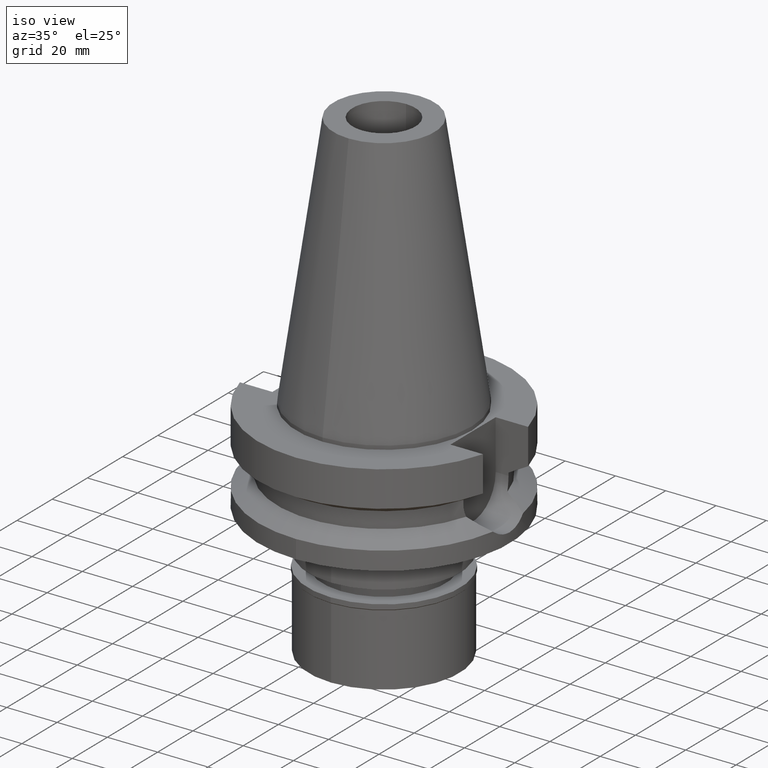
[diagram: clean part render]
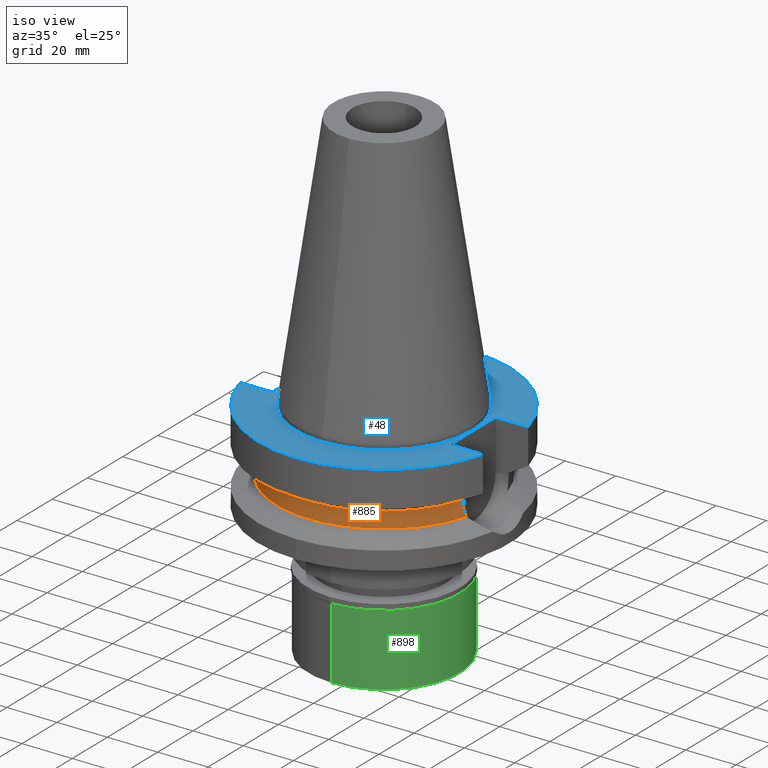
[diagram: same view with three faces highlighted in distinct colors, each labeled with its STEP entity id]
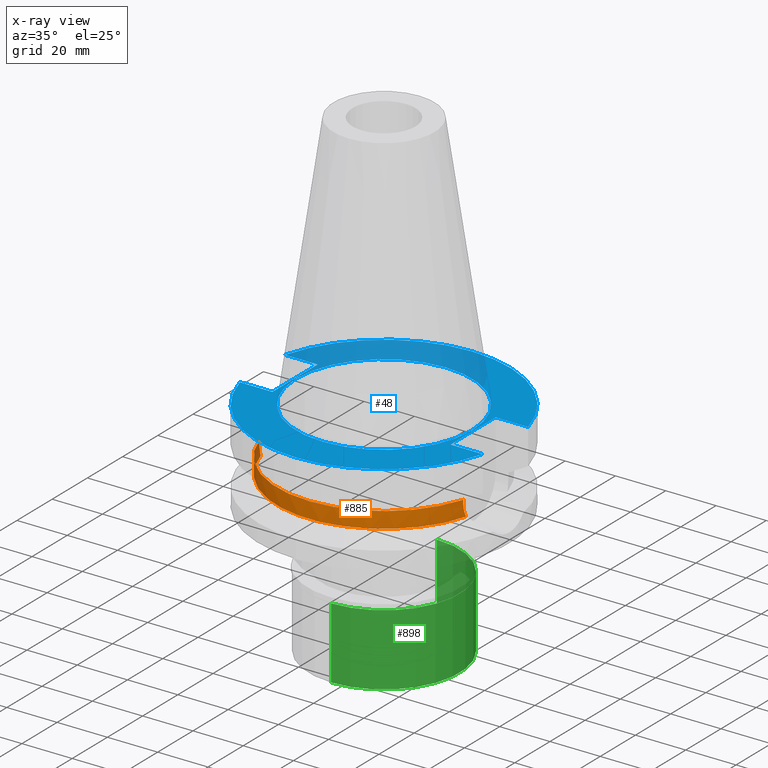
[diagram: x-ray of the same camera — body ghosted, the three highlighted faces saturated]
A machine part, iso view with three faces highlighted in distinct colors.
The next image is the same camera in x-ray (body ghosted, the three faces saturated) — at least one of them is partly hidden behind the body in this view.
Their STEP definitions:

[orange] entity #885 — the highlighted cylindrical surface (partial cylindrical patch) has radius 42.5 mm, axis along (0, 0, -1).
#7 = VERTEX_POINT ( 'NONE', #76 ) ;
#66 = EDGE_CURVE ( 'NONE', #7, #2121, #129, .T. ) ;
#76 = CARTESIAN_POINT ( 'NONE',  ( 40.51083188481999997, -12.84999999999999964, -19.99281925464999787 ) ) ;
#79 = CARTESIAN_POINT ( 'NONE',  ( -40.60613670648186968, -12.54578755583301231, -23.92964714799551729 ) ) ;
#88 = CARTESIAN_POINT ( 'NONE',  ( 0.0000000000000000000, 1.006319759053999930E-14, -19.99281925464999787 ) ) ;
#94 = CARTESIAN_POINT ( 'NONE',  ( -40.68244601107633684, -12.29666625011165415, -24.88710380518764254 ) ) ;
#129 = CIRCLE ( 'NONE', #910, 42.50000000000002132 ) ;
#253 = EDGE_CURVE ( 'NONE', #996, #2121, #2342, .T. ) ;
#263 = ORIENTED_EDGE ( 'NONE', *, *, #2240, .F. ) ;
#283 = DIRECTION ( 'NONE',  ( -9.706542783558457742E-07, -3.060081394274144957E-06, -0.9999999999948467888 ) ) ;
#289 = CARTESIAN_POINT ( 'NONE',  ( -40.74530522851353709, -12.08734613714425876, -25.53455770065779618 ) ) ;
#338 = CARTESIAN_POINT ( 'NONE',  ( 40.85052569294000335, -11.72538061688000077, -26.40718074535000426 ) ) ;
#377 = CARTESIAN_POINT ( 'NONE',  ( 40.54944727710435615, -12.72806419699665526, -22.93049076237651107 ) ) ;
#391 = CARTESIAN_POINT ( 'NONE',  ( 40.57496101843507574, -12.64633755876298693, -23.43369807928904081 ) ) ;
#470 = CYLINDRICAL_SURFACE ( 'NONE', #1991, 42.50000000000000000 ) ;
#522 = CARTESIAN_POINT ( 'NONE',  ( 40.51083300802000764, -12.84999645901999976, -19.99284642926000188 ) ) ;
#528 = CARTESIAN_POINT ( 'NONE',  ( -40.51083188482000708, -12.84999999999998543, -22.03308001794205140 ) ) ;
#596 = DIRECTION ( 'NONE',  ( 0.9531960443486575674, -0.3023529411764863672, 0.0000000000000000000 ) ) ;
#605 = CARTESIAN_POINT ( 'NONE',  ( 40.51083188481999997, -12.84999999999999609, -21.59154171183184800 ) ) ;
#608 = VERTEX_POINT ( 'NONE', #2826 ) ;
#633 = ORIENTED_EDGE ( 'NONE', *, *, #253, .F. ) ;
#659 = CARTESIAN_POINT ( 'NONE',  ( -40.51083300404000198, -12.84999647154000080, -19.99284633316000281 ) ) ;
#667 = DIRECTION ( 'NONE',  ( -9.672215101298841641E-07, 3.049259253634950369E-06, 0.9999999999948832041 ) ) ;
#681 = AXIS2_PLACEMENT_3D ( 'NONE', #2833, #1940, #2603 ) ;
#731 = CARTESIAN_POINT ( 'NONE',  ( -40.60257095199571609, -12.55731571366193577, -23.87709474182198122 ) ) ;
#761 = CARTESIAN_POINT ( 'NONE',  ( -40.61156896389279325, -12.52821669071489552, -24.00856318994577876 ) ) ;
#821 = EDGE_CURVE ( 'NONE', #2540, #2389, #2387, .T. ) ;
#852 = CARTESIAN_POINT ( 'NONE',  ( 40.73816957792652005, -12.11682261037108965, -25.53412604446967649 ) ) ;
#885 = ADVANCED_FACE ( 'NONE', ( #1938 ), #470, .T. ) ;
#896 = CARTESIAN_POINT ( 'NONE',  ( 40.58662608485430923, -12.60878154790535000, -23.62927549513685221 ) ) ;
#910 = AXIS2_PLACEMENT_3D ( 'NONE', #88, #2208, #596 ) ;
#992 = CARTESIAN_POINT ( 'NONE',  ( -40.51083188481999997, -12.84999999999999964, -21.14999999999999858 ) ) ;
#996 = VERTEX_POINT ( 'NONE', #1163 ) ;
#1163 = CARTESIAN_POINT ( 'NONE',  ( -40.51083188481999997, -12.84999999999999964, -21.14999999999999858 ) ) ;
#1297 = VECTOR ( 'NONE', #667, 1000.000000000000227 ) ;
#1343 = CARTESIAN_POINT ( 'NONE',  ( 40.51083188481999997, -12.84999999999999964, -21.14999999999999858 ) ) ;
#1391 = EDGE_LOOP ( 'NONE', ( #1645, #2284, #2432, #263, #2763, #633 ) ) ;
#1473 = CARTESIAN_POINT ( 'NONE',  ( -40.62482961095668088, -12.48525133053583147, -24.19329755006814153 ) ) ;
#1476 = CARTESIAN_POINT ( 'NONE',  ( 0.0000000000000000000, 2.581739149621999642E-14, 110.8149999999999977 ) ) ;
#1486 = CARTESIAN_POINT ( 'NONE',  ( -40.63719938804874943, -12.44499676301189162, -24.35261212848416079 ) ) ;
#1549 = CARTESIAN_POINT ( 'NONE',  ( 40.51818719763606680, -12.82722225432308960, -22.03686830847411215 ) ) ;
#1586 = EDGE_CURVE ( 'NONE', #608, #996, #1790, .T. ) ;
#1597 = CARTESIAN_POINT ( 'NONE',  ( 40.85052569294000335, -11.72538061688000077, -26.40718074535000426 ) ) ;
#1645 = ORIENTED_EDGE ( 'NONE', *, *, #1586, .F. ) ;
#1684 = DIRECTION ( 'NONE',  ( 0.0000000000000000000, -1.000000000000000000, 0.0000000000000000000 ) ) ;
#1714 = VECTOR ( 'NONE', #283, 1000.000000000000227 ) ;
#1790 = B_SPLINE_CURVE_WITH_KNOTS ( 'NONE', 3,
 ( #2844, #2434, #289, #94, #2903, #1486, #1473, #761, #79, #731, #1923, #2444, #528, #992 ),
 .UNSPECIFIED., .F., .F.,
 ( 4, 2, 2, 1, 1, 2, 2, 4 ),
 ( 0.0000000000000000000, 0.2499999999999908407, 0.3749999999999861222, 0.4374999999999826250, 0.4687499999999819034, 0.4843749999999814593, 0.4999999999999810707, 1.000000000000000000 ),
 .UNSPECIFIED. ) ;
#1793 = CARTESIAN_POINT ( 'NONE',  ( 40.56599673094050473, -12.67509433839779120, -23.26596311455569932 ) ) ;
#1914 = CIRCLE ( 'NONE', #681, 42.50000000000000000 ) ;
#1923 = CARTESIAN_POINT ( 'NONE',  ( -40.60092750940732031, -12.56262654778352506, -23.85254111937892674 ) ) ;
#1925 = DIRECTION ( 'NONE',  ( 0.0000000000000000000, 0.0000000000000000000, -1.000000000000000000 ) ) ;
#1938 = FACE_OUTER_BOUND ( 'NONE', #1391, .T. ) ;
#1940 = DIRECTION ( 'NONE',  ( 0.0000000000000000000, 0.0000000000000000000, 1.000000000000000000 ) ) ;
#1991 = AXIS2_PLACEMENT_3D ( 'NONE', #1476, #1925, #1684 ) ;
#2009 = CARTESIAN_POINT ( 'NONE',  ( 40.51083188481999997, -12.84999999999999964, -21.14999999999999858 ) ) ;
#2018 = CARTESIAN_POINT ( 'NONE',  ( 40.65435955981745764, -12.39001970624487292, -24.66361747048510011 ) ) ;
#2121 = VERTEX_POINT ( 'NONE', #659 ) ;
#2208 = DIRECTION ( 'NONE',  ( 0.0000000000000000000, 0.0000000000000000000, -1.000000000000000000 ) ) ;
#2240 = EDGE_CURVE ( 'NONE', #7, #2540, #2395, .T. ) ;
#2284 = ORIENTED_EDGE ( 'NONE', *, *, #2784, .T. ) ;
#2342 = LINE ( 'NONE', #2781, #1297 ) ;
#2387 = B_SPLINE_CURVE_WITH_KNOTS ( 'NONE', 3,
 ( #2009, #605, #1549, #2492, #377, #1793, #391, #896, #2797, #2732, #2974, #2018, #852, #1597 ),
 .UNSPECIFIED., .F., .F.,
 ( 4, 2, 2, 1, 1, 2, 2, 4 ),
 ( 0.0000000000000000000, 0.2499999999999892308, 0.3749999999999846789, 0.4374999999999822919, 0.4687499999999819589, 0.4843749999999820144, 0.4999999999999820144, 1.000000000000000000 ),
 .UNSPECIFIED. ) ;
#2389 = VERTEX_POINT ( 'NONE', #338 ) ;
#2395 = LINE ( 'NONE', #522, #1714 ) ;
#2432 = ORIENTED_EDGE ( 'NONE', *, *, #821, .F. ) ;
#2434 = CARTESIAN_POINT ( 'NONE',  ( -40.79434743164174648, -11.92110232362476019, -25.97065181136010992 ) ) ;
#2444 = CARTESIAN_POINT ( 'NONE',  ( -40.54025086427707691, -12.75862911298345992, -22.93149008171479508 ) ) ;
#2492 = CARTESIAN_POINT ( 'NONE',  ( 40.54025313608426018, -12.75731810731625337, -22.70684014861359756 ) ) ;
#2540 = VERTEX_POINT ( 'NONE', #1343 ) ;
#2603 = DIRECTION ( 'NONE',  ( 0.0000000000000000000, -1.000000000000000000, 0.0000000000000000000 ) ) ;
#2732 = CARTESIAN_POINT ( 'NONE',  ( 40.59544671389546977, -12.58032818125506580, -23.76890350620163517 ) ) ;
#2763 = ORIENTED_EDGE ( 'NONE', *, *, #66, .T. ) ;
#2781 = CARTESIAN_POINT ( 'NONE',  ( -40.51083188481999997, -12.84999999999999964, -21.14999999999999858 ) ) ;
#2784 = EDGE_CURVE ( 'NONE', #608, #2389, #1914, .T. ) ;
#2797 = CARTESIAN_POINT ( 'NONE',  ( 40.59188398425018818, -12.59182459259147002, -23.71305796896682594 ) ) ;
#2826 = CARTESIAN_POINT ( 'NONE',  ( -40.85052569294000335, -11.72538061688000077, -26.40718074535000426 ) ) ;
#2833 = CARTESIAN_POINT ( 'NONE',  ( 0.0000000000000000000, 0.0000000000000000000, -26.40718074535000426 ) ) ;
#2844 = CARTESIAN_POINT ( 'NONE',  ( -40.85052569294000335, -11.72538061688000077, -26.40718074535000426 ) ) ;
#2903 = CARTESIAN_POINT ( 'NONE',  ( -40.66327695313978552, -12.35977177933932225, -24.67238797837626052 ) ) ;
#2974 = CARTESIAN_POINT ( 'NONE',  ( 40.59736864107516396, -12.57412283048223856, -23.79851909554432865 ) ) ;

[blue] entity #48 — the highlighted planar face has unit normal (0, 0, -1).
#33 = CARTESIAN_POINT ( 'NONE',  ( 35.39999999999999858, 12.84999999999999964, -1.500000000000000000 ) ) ;
#48 = ADVANCED_FACE ( 'NONE', ( #1897, #1434 ), #1444, .F. ) ;
#53 = CARTESIAN_POINT ( 'NONE',  ( 35.39999999999999858, -12.84999999999999964, -1.500000000000000000 ) ) ;
#144 = CARTESIAN_POINT ( 'NONE',  ( -35.39999999999999858, -12.84999999999999964, -1.500000000000000000 ) ) ;
#159 = EDGE_CURVE ( 'NONE', #2667, #925, #2633, .T. ) ;
#172 = ORIENTED_EDGE ( 'NONE', *, *, #696, .T. ) ;
#188 = AXIS2_PLACEMENT_3D ( 'NONE', #1898, #2567, #1399 ) ;
#210 = CARTESIAN_POINT ( 'NONE',  ( 48.32057015392000210, -12.84999999999999964, -1.500000000000000000 ) ) ;
#218 = LINE ( 'NONE', #33, #2409 ) ;
#219 = VERTEX_POINT ( 'NONE', #474 ) ;
#292 = CARTESIAN_POINT ( 'NONE',  ( -48.32057015392000210, -12.84999999999999964, -1.500000000000000000 ) ) ;
#365 = ORIENTED_EDGE ( 'NONE', *, *, #445, .F. ) ;
#416 = EDGE_LOOP ( 'NONE', ( #365, #944 ) ) ;
#445 = EDGE_CURVE ( 'NONE', #1610, #219, #472, .T. ) ;
#472 = CIRCLE ( 'NONE', #2199, 34.92499999999999716 ) ;
#474 = CARTESIAN_POINT ( 'NONE',  ( 0.0000000000000000000, -34.92499999999999716, -1.500000000000000000 ) ) ;
#501 = ORIENTED_EDGE ( 'NONE', *, *, #2952, .F. ) ;
#578 = CARTESIAN_POINT ( 'NONE',  ( 35.39999999999999858, 12.84999999999999964, -1.500000000000000000 ) ) ;
#599 = DIRECTION ( 'NONE',  ( 0.0000000000000000000, 0.0000000000000000000, 1.000000000000000000 ) ) ;
#601 = CARTESIAN_POINT ( 'NONE',  ( 0.0000000000000000000, 2.581739149621999642E-14, -1.500000000000000000 ) ) ;
#654 = EDGE_CURVE ( 'NONE', #2939, #759, #812, .T. ) ;
#696 = EDGE_CURVE ( 'NONE', #2477, #925, #810, .T. ) ;
#728 = VECTOR ( 'NONE', #1070, 1000.000000000000000 ) ;
#752 = ORIENTED_EDGE ( 'NONE', *, *, #2433, .T. ) ;
#759 = VERTEX_POINT ( 'NONE', #2476 ) ;
#810 = LINE ( 'NONE', #1509, #1258 ) ;
#812 = CIRCLE ( 'NONE', #188, 50.00000000000000000 ) ;
#834 = ORIENTED_EDGE ( 'NONE', *, *, #1487, .F. ) ;
#851 = VERTEX_POINT ( 'NONE', #53 ) ;
#888 = DIRECTION ( 'NONE',  ( 1.000000000000000000, 0.0000000000000000000, 0.0000000000000000000 ) ) ;
#914 = ORIENTED_EDGE ( 'NONE', *, *, #2821, .F. ) ;
#925 = VERTEX_POINT ( 'NONE', #292 ) ;
#944 = ORIENTED_EDGE ( 'NONE', *, *, #1783, .F. ) ;
#966 = LINE ( 'NONE', #1184, #1474 ) ;
#975 = VECTOR ( 'NONE', #1525, 1000.000000000000000 ) ;
#1070 = DIRECTION ( 'NONE',  ( 0.0000000000000000000, 1.000000000000000000, 0.0000000000000000000 ) ) ;
#1102 = DIRECTION ( 'NONE',  ( 0.0000000000000000000, 0.0000000000000000000, -1.000000000000000000 ) ) ;
#1111 = CARTESIAN_POINT ( 'NONE',  ( -48.32057015392000210, 12.84999999999999964, -1.500000000000000000 ) ) ;
#1184 = CARTESIAN_POINT ( 'NONE',  ( -35.39999999999999858, 12.84999999999999964, -1.500000000000000000 ) ) ;
#1247 = DIRECTION ( 'NONE',  ( 0.0000000000000000000, -1.000000000000000000, 0.0000000000000000000 ) ) ;
#1258 = VECTOR ( 'NONE', #1754, 1000.000000000000000 ) ;
#1307 = AXIS2_PLACEMENT_3D ( 'NONE', #2729, #599, #2940 ) ;
#1312 = VERTEX_POINT ( 'NONE', #2753 ) ;
#1326 = CARTESIAN_POINT ( 'NONE',  ( 35.39999999999999858, -12.84999999999999964, -1.500000000000000000 ) ) ;
#1378 = ORIENTED_EDGE ( 'NONE', *, *, #2466, .F. ) ;
#1394 = CARTESIAN_POINT ( 'NONE',  ( 0.0000000000000000000, 2.581739149621999642E-14, -1.500000000000000000 ) ) ;
#1399 = DIRECTION ( 'NONE',  ( 0.0000000000000000000, 1.000000000000000000, 0.0000000000000000000 ) ) ;
#1434 = FACE_BOUND ( 'NONE', #416, .T. ) ;
#1444 = PLANE ( 'NONE',  #2542 ) ;
#1474 = VECTOR ( 'NONE', #1669, 1000.000000000000000 ) ;
#1483 = ORIENTED_EDGE ( 'NONE', *, *, #654, .F. ) ;
#1487 = EDGE_CURVE ( 'NONE', #2472, #851, #218, .T. ) ;
#1495 = EDGE_LOOP ( 'NONE', ( #172, #2775, #501, #834, #752, #1483, #914, #1378 ) ) ;
#1509 = CARTESIAN_POINT ( 'NONE',  ( -35.39999999999999858, -12.84999999999999964, -1.500000000000000000 ) ) ;
#1525 = DIRECTION ( 'NONE',  ( 1.000000000000000000, 0.0000000000000000000, 0.0000000000000000000 ) ) ;
#1548 = LINE ( 'NONE', #1326, #2850 ) ;
#1605 = DIRECTION ( 'NONE',  ( 0.0000000000000000000, -1.000000000000000000, 0.0000000000000000000 ) ) ;
#1610 = VERTEX_POINT ( 'NONE', #2862 ) ;
#1669 = DIRECTION ( 'NONE',  ( -1.000000000000000000, 0.0000000000000000000, 0.0000000000000000000 ) ) ;
#1710 = AXIS2_PLACEMENT_3D ( 'NONE', #1394, #1102, #1605 ) ;
#1746 = DIRECTION ( 'NONE',  ( 0.0000000000000000000, 1.000000000000000000, 0.0000000000000000000 ) ) ;
#1754 = DIRECTION ( 'NONE',  ( -1.000000000000000000, 0.0000000000000000000, 0.0000000000000000000 ) ) ;
#1783 = EDGE_CURVE ( 'NONE', #219, #1610, #2643, .T. ) ;
#1897 = FACE_OUTER_BOUND ( 'NONE', #1495, .T. ) ;
#1898 = CARTESIAN_POINT ( 'NONE',  ( 0.0000000000000000000, 2.581739149621999642E-14, -1.500000000000000000 ) ) ;
#2013 = CARTESIAN_POINT ( 'NONE',  ( 35.39999999999999858, 12.84999999999999964, -1.500000000000000000 ) ) ;
#2084 = DIRECTION ( 'NONE',  ( 0.0000000000000000000, -1.000000000000000000, 0.0000000000000000000 ) ) ;
#2196 = DIRECTION ( 'NONE',  ( 0.0000000000000000000, 0.0000000000000000000, 1.000000000000000000 ) ) ;
#2199 = AXIS2_PLACEMENT_3D ( 'NONE', #601, #2196, #1746 ) ;
#2396 = CARTESIAN_POINT ( 'NONE',  ( 0.0000000000000000000, 1.206277097159999845E-14, -1.500000000000000000 ) ) ;
#2409 = VECTOR ( 'NONE', #2084, 1000.000000000000000 ) ;
#2430 = DIRECTION ( 'NONE',  ( 0.0000000000000000000, 0.0000000000000000000, -1.000000000000000000 ) ) ;
#2433 = EDGE_CURVE ( 'NONE', #2472, #759, #2923, .T. ) ;
#2466 = EDGE_CURVE ( 'NONE', #2477, #1312, #2496, .T. ) ;
#2472 = VERTEX_POINT ( 'NONE', #2013 ) ;
#2476 = CARTESIAN_POINT ( 'NONE',  ( 48.32057015392000210, 12.84999999999999964, -1.500000000000000000 ) ) ;
#2477 = VERTEX_POINT ( 'NONE', #2954 ) ;
#2496 = LINE ( 'NONE', #144, #728 ) ;
#2542 = AXIS2_PLACEMENT_3D ( 'NONE', #2396, #2430, #1247 ) ;
#2567 = DIRECTION ( 'NONE',  ( 0.0000000000000000000, 0.0000000000000000000, -1.000000000000000000 ) ) ;
#2633 = CIRCLE ( 'NONE', #1710, 50.00000000000000000 ) ;
#2643 = CIRCLE ( 'NONE', #1307, 34.92499999999999716 ) ;
#2667 = VERTEX_POINT ( 'NONE', #210 ) ;
#2729 = CARTESIAN_POINT ( 'NONE',  ( 0.0000000000000000000, 2.581739149621999642E-14, -1.500000000000000000 ) ) ;
#2753 = CARTESIAN_POINT ( 'NONE',  ( -35.39999999999999858, 12.84999999999999964, -1.500000000000000000 ) ) ;
#2775 = ORIENTED_EDGE ( 'NONE', *, *, #159, .F. ) ;
#2821 = EDGE_CURVE ( 'NONE', #1312, #2939, #966, .T. ) ;
#2850 = VECTOR ( 'NONE', #888, 1000.000000000000000 ) ;
#2862 = CARTESIAN_POINT ( 'NONE',  ( 0.0000000000000000000, 34.92499999999999716, -1.500000000000000000 ) ) ;
#2923 = LINE ( 'NONE', #578, #975 ) ;
#2939 = VERTEX_POINT ( 'NONE', #1111 ) ;
#2940 = DIRECTION ( 'NONE',  ( 0.0000000000000000000, -1.000000000000000000, 0.0000000000000000000 ) ) ;
#2952 = EDGE_CURVE ( 'NONE', #851, #2667, #1548, .T. ) ;
#2954 = CARTESIAN_POINT ( 'NONE',  ( -35.39999999999999858, -12.84999999999999964, -1.500000000000000000 ) ) ;

[green] entity #898 — the highlighted cylindrical surface (partial cylindrical patch) has radius 30 mm, axis along (0, 0, -1).
#108 = DIRECTION ( 'NONE',  ( 0.0000000000000000000, 0.0000000000000000000, -1.000000000000000000 ) ) ;
#214 = EDGE_LOOP ( 'NONE', ( #326, #378, #2863, #1022 ) ) ;
#326 = ORIENTED_EDGE ( 'NONE', *, *, #1834, .T. ) ;
#374 = CARTESIAN_POINT ( 'NONE',  ( 0.0000000000000000000, -30.00000000000000000, -2.299999999999999822 ) ) ;
#378 = ORIENTED_EDGE ( 'NONE', *, *, #2320, .T. ) ;
#426 = AXIS2_PLACEMENT_3D ( 'NONE', #1202, #2350, #1174 ) ;
#466 = EDGE_CURVE ( 'NONE', #1017, #2097, #1498, .T. ) ;
#481 = VECTOR ( 'NONE', #2969, 1000.000000000000000 ) ;
#503 = DIRECTION ( 'NONE',  ( 0.0000000000000000000, 0.0000000000000000000, -1.000000000000000000 ) ) ;
#564 = VERTEX_POINT ( 'NONE', #884 ) ;
#671 = AXIS2_PLACEMENT_3D ( 'NONE', #1453, #503, #2143 ) ;
#672 = EDGE_CURVE ( 'NONE', #564, #2097, #770, .T. ) ;
#695 = CARTESIAN_POINT ( 'NONE',  ( 0.0000000000000000000, 30.00000000000000000, -30.80000000000000071 ) ) ;
#739 = CYLINDRICAL_SURFACE ( 'NONE', #671, 30.00000000000000000 ) ;
#770 = CIRCLE ( 'NONE', #426, 30.00000000000000000 ) ;
#808 = LINE ( 'NONE', #1492, #481 ) ;
#884 = CARTESIAN_POINT ( 'NONE',  ( 0.0000000000000000000, -30.00000000000000000, -30.80000000000000071 ) ) ;
#898 = ADVANCED_FACE ( 'NONE', ( #1409 ), #739, .T. ) ;
#969 = AXIS2_PLACEMENT_3D ( 'NONE', #1302, #108, #1984 ) ;
#1017 = VERTEX_POINT ( 'NONE', #1864 ) ;
#1022 = ORIENTED_EDGE ( 'NONE', *, *, #466, .F. ) ;
#1174 = DIRECTION ( 'NONE',  ( 0.0000000000000000000, -1.000000000000000000, 0.0000000000000000000 ) ) ;
#1202 = CARTESIAN_POINT ( 'NONE',  ( 0.0000000000000000000, 0.0000000000000000000, -30.80000000000000071 ) ) ;
#1266 = CARTESIAN_POINT ( 'NONE',  ( 0.0000000000000000000, 30.00000000000000000, -2.299999999999999822 ) ) ;
#1267 = VERTEX_POINT ( 'NONE', #374 ) ;
#1302 = CARTESIAN_POINT ( 'NONE',  ( 0.0000000000000000000, 0.0000000000000000000, -2.299999999999999822 ) ) ;
#1409 = FACE_OUTER_BOUND ( 'NONE', #214, .T. ) ;
#1453 = CARTESIAN_POINT ( 'NONE',  ( 0.0000000000000000000, 0.0000000000000000000, 0.0000000000000000000 ) ) ;
#1492 = CARTESIAN_POINT ( 'NONE',  ( 0.0000000000000000000, -30.00000000000000000, -2.299999999999999822 ) ) ;
#1498 = LINE ( 'NONE', #1266, #1505 ) ;
#1505 = VECTOR ( 'NONE', #1545, 1000.000000000000000 ) ;
#1545 = DIRECTION ( 'NONE',  ( 0.0000000000000000000, 0.0000000000000000000, -1.000000000000000000 ) ) ;
#1619 = CIRCLE ( 'NONE', #969, 30.00000000000000000 ) ;
#1834 = EDGE_CURVE ( 'NONE', #1017, #1267, #1619, .T. ) ;
#1864 = CARTESIAN_POINT ( 'NONE',  ( 0.0000000000000000000, 30.00000000000000000, -2.299999999999999822 ) ) ;
#1984 = DIRECTION ( 'NONE',  ( 0.0000000000000000000, 1.000000000000000000, 0.0000000000000000000 ) ) ;
#2097 = VERTEX_POINT ( 'NONE', #695 ) ;
#2143 = DIRECTION ( 'NONE',  ( 0.0000000000000000000, -1.000000000000000000, 0.0000000000000000000 ) ) ;
#2320 = EDGE_CURVE ( 'NONE', #1267, #564, #808, .T. ) ;
#2350 = DIRECTION ( 'NONE',  ( 0.0000000000000000000, 0.0000000000000000000, 1.000000000000000000 ) ) ;
#2863 = ORIENTED_EDGE ( 'NONE', *, *, #672, .T. ) ;
#2969 = DIRECTION ( 'NONE',  ( 0.0000000000000000000, 0.0000000000000000000, -1.000000000000000000 ) ) ;